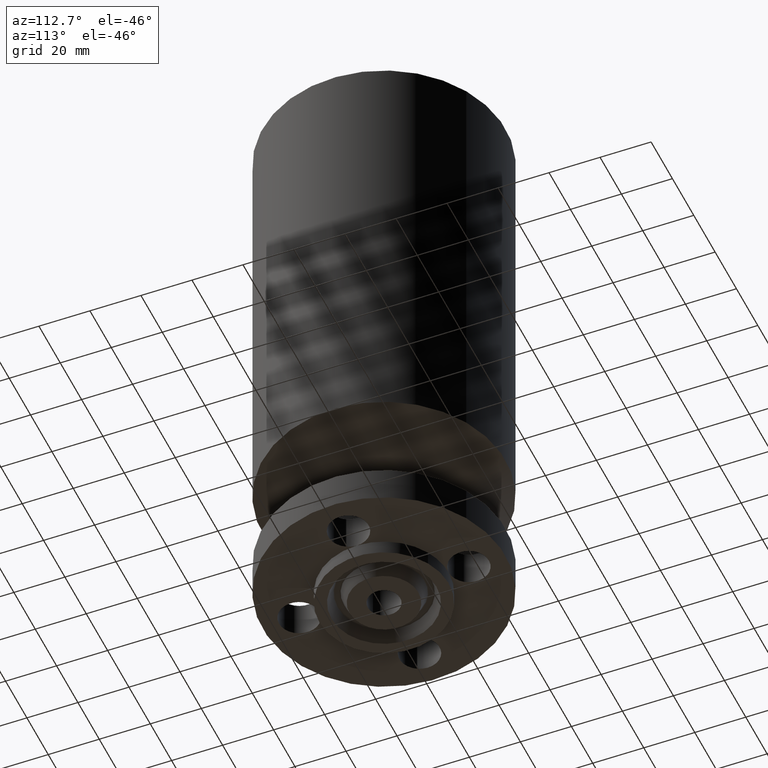
[diagram: clean part render]
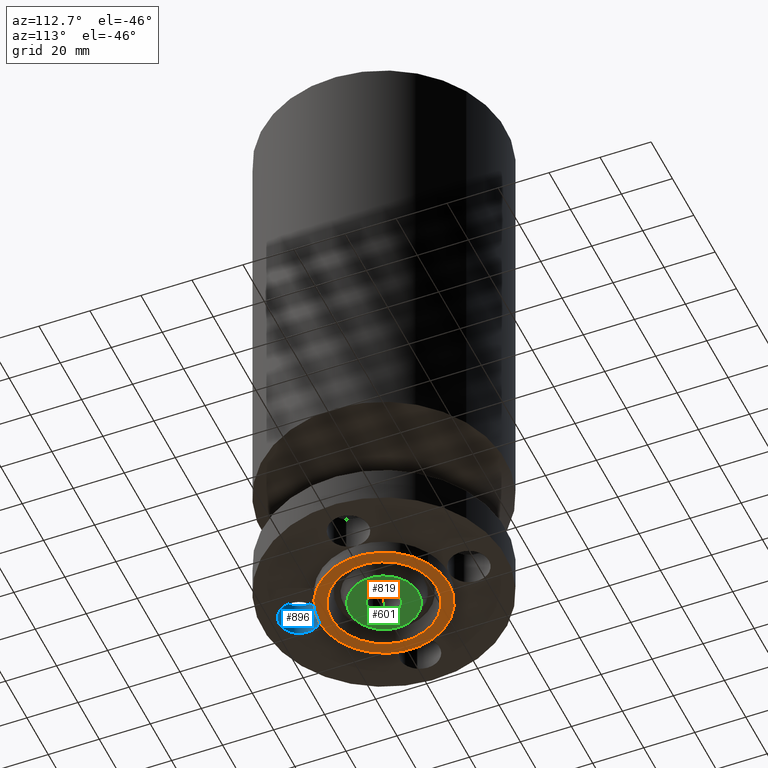
[diagram: same view with three faces highlighted in distinct colors, each labeled with its STEP entity id]
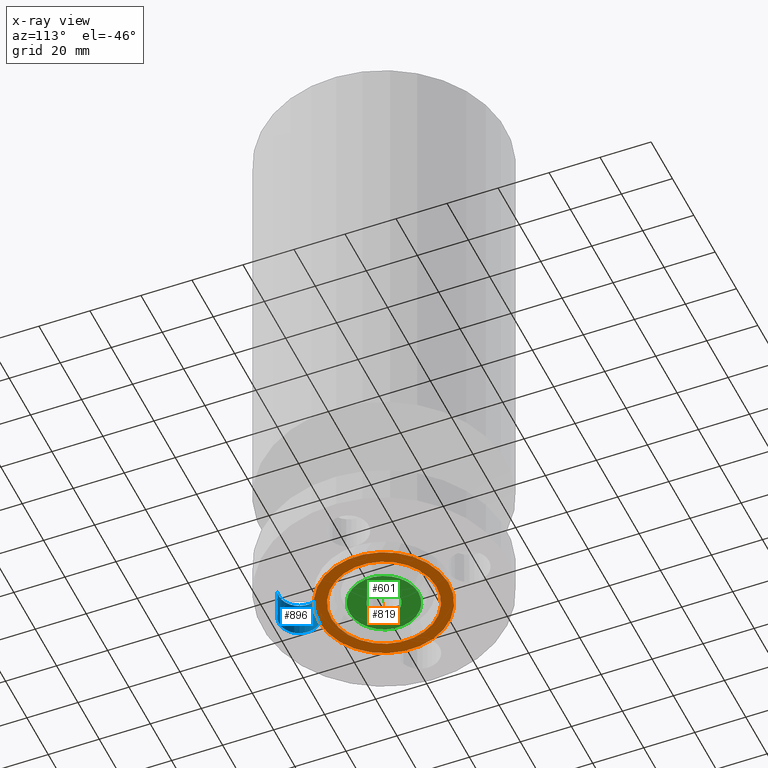
[diagram: x-ray of the same camera — body ghosted, the three highlighted faces saturated]
A machine part, auxiliary view with three faces highlighted in distinct colors.
The next image is the same camera in x-ray (body ghosted, the three faces saturated) — at least one of them is partly hidden behind the body in this view.
Their STEP definitions:

[orange] entity #819 — the highlighted planar face has unit normal (0, 0, -1).
#577=AXIS2_PLACEMENT_3D('Plane Axis2P3D',#574,#575,#576) ;
#768=AXIS2_PLACEMENT_3D('Circle Axis2P3D',#766,#767,$) ;
#787=AXIS2_PLACEMENT_3D('Circle Axis2P3D',#785,#786,$) ;
#799=AXIS2_PLACEMENT_3D('Circle Axis2P3D',#797,#798,$) ;
#808=AXIS2_PLACEMENT_3D('Circle Axis2P3D',#806,#807,$) ;
#574=CARTESIAN_POINT('Axis2P3D Location',(0.,0.250000000001,-0.219000000001)) ;
#763=CARTESIAN_POINT('Vertex',(-0.389533250117,-0.713035831539,-0.219000000001)) ;
#766=CARTESIAN_POINT('Axis2P3D Location',(0.,0.,-0.219000000001)) ;
#770=CARTESIAN_POINT('Vertex',(0.389533250117,0.713035831539,-0.219000000001)) ;
#785=CARTESIAN_POINT('Axis2P3D Location',(0.,0.,-0.219000000001)) ;
#797=CARTESIAN_POINT('Axis2P3D Location',(0.,0.,-0.219000000001)) ;
#801=CARTESIAN_POINT('Vertex',(-0.479425538606,-0.877582561894,-0.219000000001)) ;
#803=CARTESIAN_POINT('Vertex',(0.479425538606,0.877582561894,-0.219000000001)) ;
#806=CARTESIAN_POINT('Axis2P3D Location',(0.,0.,-0.219000000001)) ;
#575=DIRECTION('Axis2P3D Direction',(0.,0.,-0.0393700787402)) ;
#576=DIRECTION('Axis2P3D XDirection',(0.0393700787402,0.,0.)) ;
#767=DIRECTION('Axis2P3D Direction',(0.,0.,-0.0393700787402)) ;
#786=DIRECTION('Axis2P3D Direction',(0.,0.,-0.0393700787402)) ;
#798=DIRECTION('Axis2P3D Direction',(0.,0.,-0.0393700787402)) ;
#807=DIRECTION('Axis2P3D Direction',(0.,0.,-0.0393700787402)) ;
#812=ORIENTED_EDGE('',*,*,#805,.T.) ;
#813=ORIENTED_EDGE('',*,*,#810,.T.) ;
#816=ORIENTED_EDGE('',*,*,#789,.F.) ;
#817=ORIENTED_EDGE('',*,*,#772,.F.) ;
#818=FACE_BOUND('',#815,.T.) ;
#819=ADVANCED_FACE('PartBody',(#814,#818),#578,.T.) ;
#769=CIRCLE('generated circle',#768,0.812500000003) ;
#788=CIRCLE('generated circle',#787,0.812500000003) ;
#800=CIRCLE('generated circle',#799,1.) ;
#809=CIRCLE('generated circle',#808,1.) ;
#772=EDGE_CURVE('',#764,#771,#769,.T.) ;
#789=EDGE_CURVE('',#771,#764,#788,.T.) ;
#805=EDGE_CURVE('',#802,#804,#800,.T.) ;
#810=EDGE_CURVE('',#804,#802,#809,.T.) ;
#811=EDGE_LOOP('',(#812,#813)) ;
#815=EDGE_LOOP('',(#816,#817)) ;
#814=FACE_OUTER_BOUND('',#811,.T.) ;
#578=PLANE('',#577) ;
#764=VERTEX_POINT('',#763) ;
#771=VERTEX_POINT('',#770) ;
#802=VERTEX_POINT('',#801) ;
#804=VERTEX_POINT('',#803) ;

[blue] entity #896 — the highlighted cylindrical surface (edge-blend (fillet) strip) has radius 7.874 mm, axis along (-0, 0, 1).
#181=AXIS2_PLACEMENT_3D('Circle Axis2P3D',#179,#180,$) ;
#869=AXIS2_PLACEMENT_3D('Cylinder Axis2P3D',#866,#867,#868) ;
#887=AXIS2_PLACEMENT_3D('Circle Axis2P3D',#885,#886,$) ;
#176=CARTESIAN_POINT('Vertex',(-0.148621916968,-1.03794940582,0.)) ;
#179=CARTESIAN_POINT('Axis2P3D Location',(-1.74838271595E-016,-1.31000000001,0.)) ;
#183=CARTESIAN_POINT('Vertex',(0.148621916968,-1.58205059419,2.2401153548E-016)) ;
#866=CARTESIAN_POINT('Axis2P3D Location',(-1.99526869207E-016,-1.31000000001,0.00393700787402)) ;
#871=CARTESIAN_POINT('Line Origine',(0.148621916968,-1.58205059419,0.280000000001)) ;
#875=CARTESIAN_POINT('Vertex',(0.148621916968,-1.58205059419,0.560000000002)) ;
#878=CARTESIAN_POINT('Line Origine',(-0.148621916968,-1.03794940582,0.280000000001)) ;
#882=CARTESIAN_POINT('Vertex',(-0.148621916968,-1.03794940582,0.560000000002)) ;
#885=CARTESIAN_POINT('Axis2P3D Location',(-1.99526869207E-016,-1.31000000001,0.560000000002)) ;
#180=DIRECTION('Axis2P3D Direction',(0.,0.,-0.0393700787402)) ;
#867=DIRECTION('Axis2P3D Direction',(-0.,0.,0.0393700787402)) ;
#868=DIRECTION('Axis2P3D XDirection',(0.0188750212049,-0.0345504945626,0.)) ;
#872=DIRECTION('Vector Direction',(0.,0.,0.0393700787402)) ;
#879=DIRECTION('Vector Direction',(0.,0.,0.0393700787402)) ;
#886=DIRECTION('Axis2P3D Direction',(-0.,0.,0.0393700787402)) ;
#873=VECTOR('Line Direction',#872,0.0393700787402) ;
#880=VECTOR('Line Direction',#879,0.0393700787402) ;
#891=ORIENTED_EDGE('',*,*,#877,.T.) ;
#892=ORIENTED_EDGE('',*,*,#185,.T.) ;
#893=ORIENTED_EDGE('',*,*,#884,.F.) ;
#894=ORIENTED_EDGE('',*,*,#889,.F.) ;
#896=ADVANCED_FACE('PartBody',(#895),#870,.F.) ;
#182=CIRCLE('generated circle',#181,0.310000000001) ;
#888=CIRCLE('generated circle',#887,0.310000000001) ;
#870=CYLINDRICAL_SURFACE('generated cylinder',#869,0.310000000001) ;
#185=EDGE_CURVE('',#184,#177,#182,.T.) ;
#877=EDGE_CURVE('',#876,#184,#874,.F.) ;
#884=EDGE_CURVE('',#883,#177,#881,.F.) ;
#889=EDGE_CURVE('',#876,#883,#888,.F.) ;
#890=EDGE_LOOP('',(#891,#892,#893,#894)) ;
#895=FACE_OUTER_BOUND('',#890,.T.) ;
#874=LINE('Line',#871,#873) ;
#881=LINE('Line',#878,#880) ;
#177=VERTEX_POINT('',#176) ;
#184=VERTEX_POINT('',#183) ;
#876=VERTEX_POINT('',#875) ;
#883=VERTEX_POINT('',#882) ;

[green] entity #601 — the highlighted planar face has unit normal (0, 0, -1).
#545=AXIS2_PLACEMENT_3D('Circle Axis2P3D',#543,#544,$) ;
#564=AXIS2_PLACEMENT_3D('Circle Axis2P3D',#562,#563,$) ;
#577=AXIS2_PLACEMENT_3D('Plane Axis2P3D',#574,#575,#576) ;
#581=AXIS2_PLACEMENT_3D('Circle Axis2P3D',#579,#580,$) ;
#590=AXIS2_PLACEMENT_3D('Circle Axis2P3D',#588,#589,$) ;
#540=CARTESIAN_POINT('Vertex',(0.119856384652,0.219395640473,-0.219000000001)) ;
#543=CARTESIAN_POINT('Axis2P3D Location',(0.,0.,-0.219000000001)) ;
#547=CARTESIAN_POINT('Vertex',(-0.119856384652,-0.219395640473,-0.219000000001)) ;
#562=CARTESIAN_POINT('Axis2P3D Location',(0.,0.,-0.219000000001)) ;
#574=CARTESIAN_POINT('Axis2P3D Location',(0.,0.250000000001,-0.219000000001)) ;
#579=CARTESIAN_POINT('Axis2P3D Location',(0.,0.,-0.219000000001)) ;
#583=CARTESIAN_POINT('Vertex',(-0.254814673769,-0.466435131647,-0.219000000001)) ;
#585=CARTESIAN_POINT('Vertex',(0.254814673769,0.466435131647,-0.219000000001)) ;
#588=CARTESIAN_POINT('Axis2P3D Location',(0.,0.,-0.219000000001)) ;
#544=DIRECTION('Axis2P3D Direction',(0.,0.,-0.0393700787402)) ;
#563=DIRECTION('Axis2P3D Direction',(0.,0.,-0.0393700787402)) ;
#575=DIRECTION('Axis2P3D Direction',(0.,0.,-0.0393700787402)) ;
#576=DIRECTION('Axis2P3D XDirection',(0.0393700787402,0.,0.)) ;
#580=DIRECTION('Axis2P3D Direction',(0.,0.,-0.0393700787402)) ;
#589=DIRECTION('Axis2P3D Direction',(0.,0.,-0.0393700787402)) ;
#594=ORIENTED_EDGE('',*,*,#587,.T.) ;
#595=ORIENTED_EDGE('',*,*,#592,.T.) ;
#598=ORIENTED_EDGE('',*,*,#549,.F.) ;
#599=ORIENTED_EDGE('',*,*,#566,.F.) ;
#600=FACE_BOUND('',#597,.T.) ;
#601=ADVANCED_FACE('PartBody',(#596,#600),#578,.T.) ;
#546=CIRCLE('generated circle',#545,0.250000000001) ;
#565=CIRCLE('generated circle',#564,0.250000000001) ;
#582=CIRCLE('generated circle',#581,0.531500000002) ;
#591=CIRCLE('generated circle',#590,0.531500000002) ;
#549=EDGE_CURVE('',#541,#548,#546,.T.) ;
#566=EDGE_CURVE('',#548,#541,#565,.T.) ;
#587=EDGE_CURVE('',#584,#586,#582,.T.) ;
#592=EDGE_CURVE('',#586,#584,#591,.T.) ;
#593=EDGE_LOOP('',(#594,#595)) ;
#597=EDGE_LOOP('',(#598,#599)) ;
#596=FACE_OUTER_BOUND('',#593,.T.) ;
#578=PLANE('',#577) ;
#541=VERTEX_POINT('',#540) ;
#548=VERTEX_POINT('',#547) ;
#584=VERTEX_POINT('',#583) ;
#586=VERTEX_POINT('',#585) ;